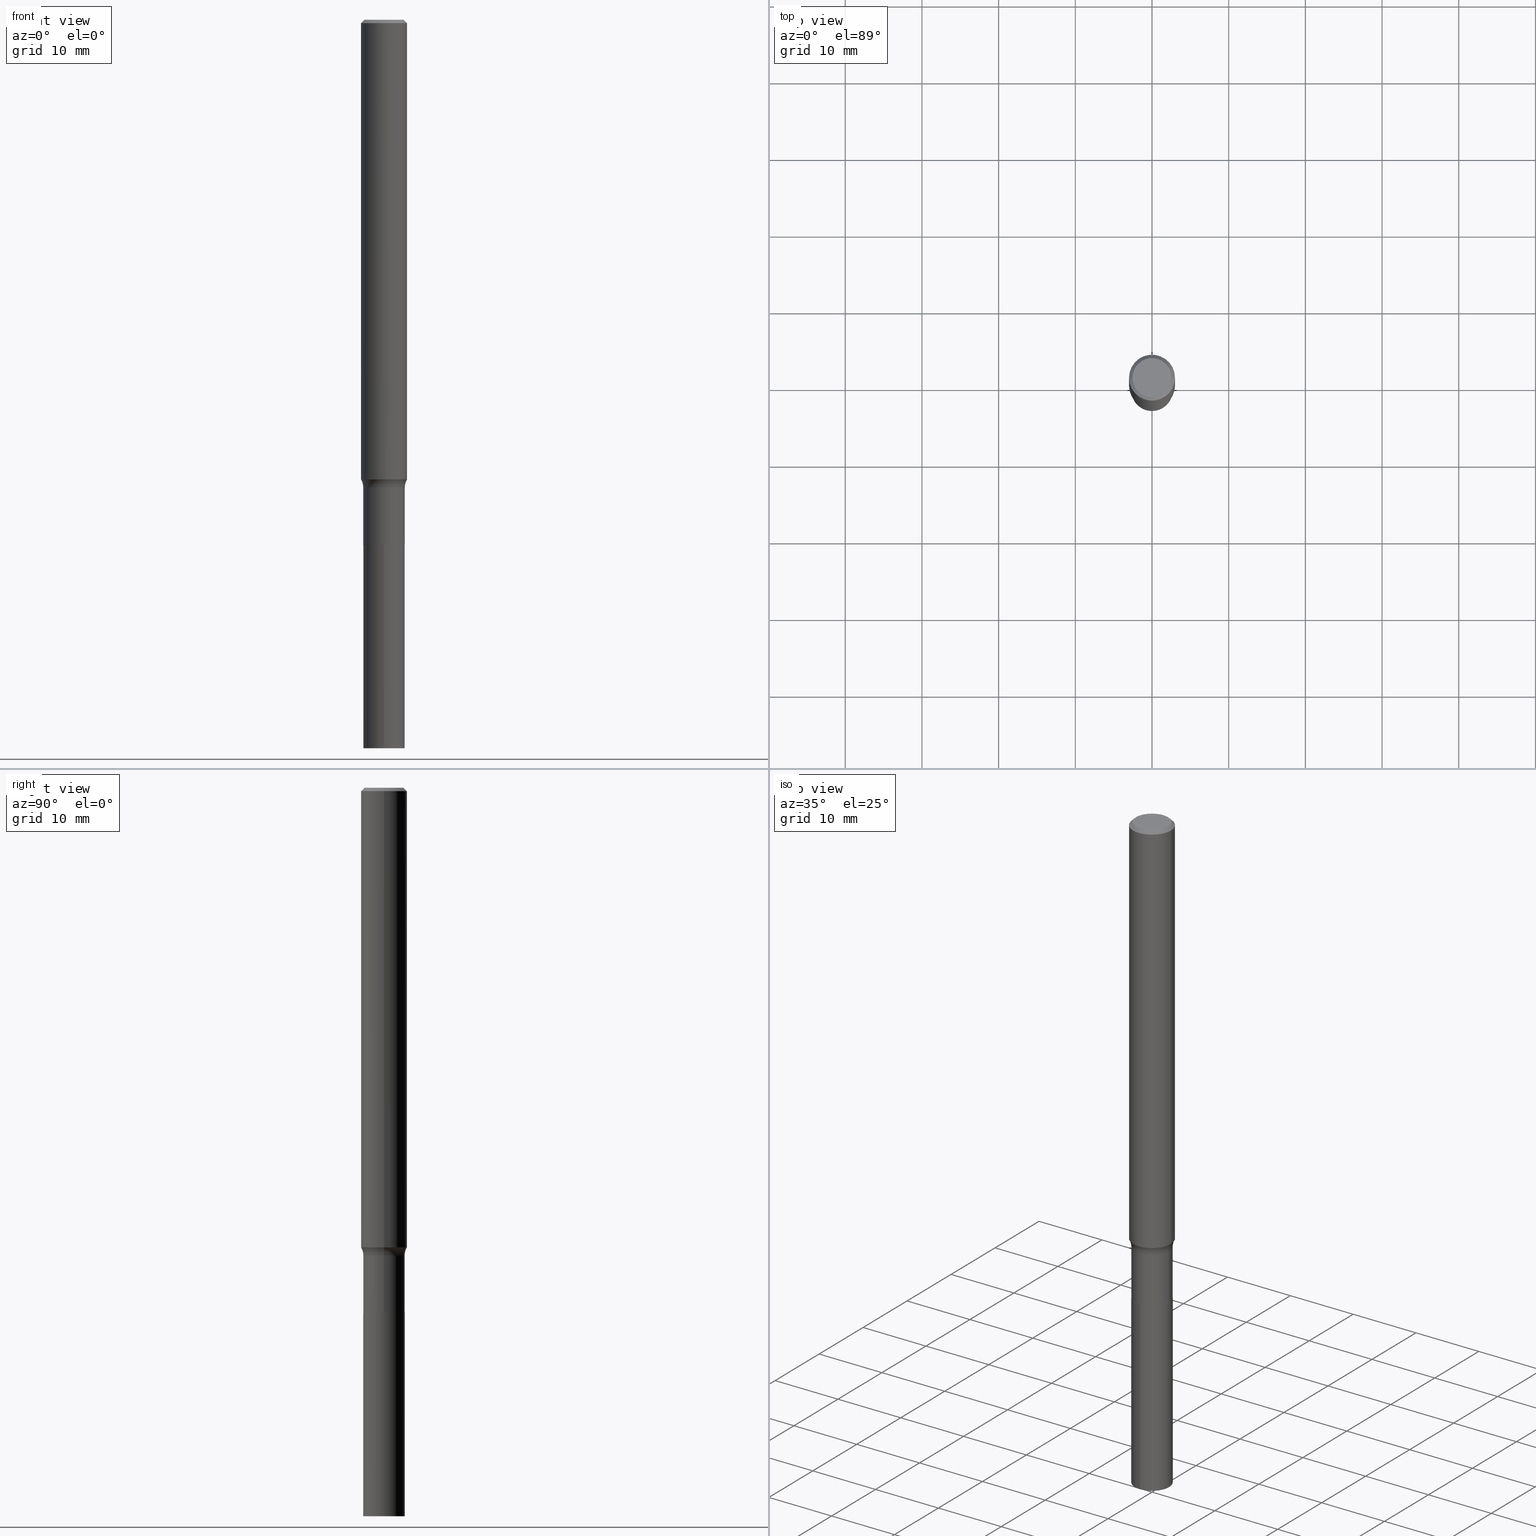
[diagram: canonical four-view strip — front | top / right | iso, engineering-drawing reading convention]
A machine part, canonical four-view strip (front | top / right | iso — engineering-drawing reading convention). The complete STEP part file that produces these views, byte-faithful:
ISO-10303-21;
HEADER;
FILE_DESCRIPTION (( 'STEP AP203' ),
    '1' );
FILE_NAME ('58886.STEP',
    '2024-04-19T14:47:41',
    ( '' ),
    ( '' ),
    'SwSTEP 2.0',
    'SolidWorks 2023',
    '' );
FILE_SCHEMA (( 'CONFIG_CONTROL_DESIGN' ));
ENDSEC;

DATA;
#1 = VERTEX_POINT ( 'NONE', #330 ) ;
#2 = DIRECTION ( 'NONE',  ( 0.000000000000000000, 0.000000000000000000, 1.000000000000000000 ) ) ;
#3 = CYLINDRICAL_SURFACE ( 'NONE', #324, 0.1064999999999999974 ) ;
#4 = DIRECTION ( 'NONE',  ( -6.982962677686265922E-15, -1.000000000000000000, 3.491302639307845228E-15 ) ) ;
#5 = DIRECTION ( 'NONE',  ( -2.445468806185136877E-29, 3.491481338843145188E-15, 1.000000000000000000 ) ) ;
#6 = APPROVAL_DATE_TIME ( #294, #231 ) ;
#7 = LINE ( 'NONE', #116, #311 ) ;
#8 = CARTESIAN_POINT ( 'NONE',  ( -0.1059999999999999970, -8.657907458709072486E-15, -2.696200000000000152 ) ) ;
#9 = VERTEX_POINT ( 'NONE', #368 ) ;
#10 = FACE_OUTER_BOUND ( 'NONE', #288, .T. ) ;
#11 = CONICAL_SURFACE ( 'NONE', #380, 0.1059999999999999970, 0.7853981633972775267 ) ;
#12 = DIRECTION ( 'NONE',  ( 1.000000000000000000, -6.982962677686266711E-15, 0.000000000000000000 ) ) ;
#13 = FACE_OUTER_BOUND ( 'NONE', #25, .T. ) ;
#14 = ORIENTED_EDGE ( 'NONE', *, *, #277, .F. ) ;
#15 = FACE_OUTER_BOUND ( 'NONE', #320, .T. ) ;
#16 = AXIS2_PLACEMENT_3D ( 'NONE', #109, #253, #392 ) ;
#17 = MANIFOLD_SOLID_BREP ( 'Body-Move/Copy2[2]', #444 ) ;
#18 = CARTESIAN_POINT ( 'NONE',  ( 6.592250260833271391E-29, -9.411986245119467472E-15, -2.695699999999999985 ) ) ;
#19 = CIRCLE ( 'NONE', #409, 0.1064999999999999558 ) ;
#20 = CARTESIAN_POINT ( 'NONE',  ( 7.567280135845724511E-16, 0.1064999999999905883, -2.696200000000000596 ) ) ;
#21 = EDGE_CURVE ( 'NONE', #452, #246, #451, .T. ) ;
#22 = DIRECTION ( 'NONE',  ( 1.000000000000000000, -6.982962677686269077E-15, 4.883557194083113462E-29 ) ) ;
#23 = ORIENTED_EDGE ( 'NONE', *, *, #242, .T. ) ;
#24 = CC_DESIGN_DATE_AND_TIME_ASSIGNMENT ( #70, #223, ( #220 ) ) ;
#25 = EDGE_LOOP ( 'NONE', ( #428, #458 ) ) ;
#26 = AXIS2_PLACEMENT_3D ( 'NONE', #191, #120, #329 ) ;
#27 = ORIENTED_EDGE ( 'NONE', *, *, #21, .F. ) ;
#28 = CALENDAR_DATE ( 2024, 19, 4 ) ;
#29 = DIRECTION ( 'NONE',  ( -2.445468806185136597E-29, 3.491481338843145583E-15, 1.000000000000000000 ) ) ;
#30 = ORIENTED_EDGE ( 'NONE', *, *, #398, .F. ) ;
#31 = DATE_AND_TIME ( #218, #213 ) ;
#32 = CARTESIAN_POINT ( 'NONE',  ( 0.000000000000000000, 0.000000000000000000, 0.000000000000000000 ) ) ;
#33 = CIRCLE ( 'NONE', #379, 0.1003850000000000159 ) ;
#34 = CARTESIAN_POINT ( 'NONE',  ( 5.770596610180262322E-29, -8.238882592768014117E-15, -2.359709760183869687 ) ) ;
#35 = EDGE_CURVE ( 'NONE', #163, #325, #66, .T. ) ;
#36 = ORIENTED_EDGE ( 'NONE', *, *, #52, .T. ) ;
#37 = MECHANICAL_CONTEXT ( 'NONE', #252, 'mechanical' ) ;
#38 = FACE_OUTER_BOUND ( 'NONE', #73, .T. ) ;
#39 = DIRECTION ( 'NONE',  ( -2.445593591403688491E-29, 3.491302639307845228E-15, 1.000000000000000000 ) ) ;
#40 = DIRECTION ( 'NONE',  ( -2.445468806185136597E-29, 3.491481338843145583E-15, 1.000000000000000000 ) ) ;
#41 = DIRECTION ( 'NONE',  ( -2.445468806185136597E-29, 3.491481338843145583E-15, 1.000000000000000000 ) ) ;
#42 = AXIS2_PLACEMENT_3D ( 'NONE', #90, #300, #446 ) ;
#43 = DIRECTION ( 'NONE',  ( -2.445468806185136597E-29, 3.491481338843145583E-15, 1.000000000000000000 ) ) ;
#44 = AXIS2_PLACEMENT_3D ( 'NONE', #225, #466, #57 ) ;
#45 = PLANE ( 'NONE',  #434 ) ;
#46 = DIRECTION ( 'NONE',  ( 1.000000000000000000, -6.982962677686260400E-15, 0.000000000000000000 ) ) ;
#47 = EDGE_LOOP ( 'NONE', ( #186, #36, #177, #400 ) ) ;
#48 = EDGE_CURVE ( 'NONE', #58, #1, #336, .T. ) ;
#49 = CARTESIAN_POINT ( 'NONE',  ( 0.1864999999999999714, -9.686067530218649054E-15, -2.401200000000000223 ) ) ;
#50 = CONICAL_SURFACE ( 'NONE', #87, 0.1180999999999999966, 0.7853981633974453924 ) ;
#51 = DIRECTION ( 'NONE',  ( -6.982962677686266711E-15, -1.000000000000000000, 3.491481338843145583E-15 ) ) ;
#52 = EDGE_CURVE ( 'NONE', #283, #58, #192, .T. ) ;
#53 = DIRECTION ( 'NONE',  ( 1.000000000000000000, -6.982962677686266711E-15, 4.875668750515085695E-29 ) ) ;
#54 = CLOSED_SHELL ( 'NONE', ( #363, #323, #439, #144 ) ) ;
#55 = EDGE_CURVE ( 'NONE', #234, #452, #123, .T. ) ;
#56 = AXIS2_PLACEMENT_3D ( 'NONE', #273, #424, #134 ) ;
#57 = DIRECTION ( 'NONE',  ( -6.982962677686265133E-15, -1.000000000000000000, 5.130230974017396004E-15 ) ) ;
#58 = VERTEX_POINT ( 'NONE', #374 ) ;
#59 = EDGE_CURVE ( 'NONE', #1, #58, #118, .T. ) ;
#60 =( NAMED_UNIT ( * ) SI_UNIT ( $, .STERADIAN. ) SOLID_ANGLE_UNIT ( ) );
#61 = ADVANCED_FACE ( 'NONE', ( #15 ), #45, .F. ) ;
#62 = CARTESIAN_POINT ( 'NONE',  ( 4.332147990156998495E-31, -6.185159191760672860E-17, -0.01771500000000011607 ) ) ;
#63 = ORIENTED_EDGE ( 'NONE', *, *, #453, .T. ) ;
#64 = APPROVAL_ROLE ( '' ) ;
#65 = ORIENTED_EDGE ( 'NONE', *, *, #128, .T. ) ;
#66 = CIRCLE ( 'NONE', #301, 0.1064999999999999974 ) ;
#67 = ORGANIZATION ( 'UNSPECIFIED', 'UNSPECIFIED', '' ) ;
#68 = ADVANCED_FACE ( 'NONE', ( #267 ), #316, .F. ) ;
#69 = ORIENTED_EDGE ( 'NONE', *, *, #59, .T. ) ;
#70 = DATE_AND_TIME ( #463, #326 ) ;
#71 = LINE ( 'NONE', #135, #389 ) ;
#72 = FACE_OUTER_BOUND ( 'NONE', #403, .T. ) ;
#73 = EDGE_LOOP ( 'NONE', ( #209, #103, #391, #440 ) ) ;
#74 = PERSON_AND_ORGANIZATION ( #319, #67 ) ;
#75 = DIRECTION ( 'NONE',  ( -2.445468806185136597E-29, 3.491481338843145583E-15, 1.000000000000000000 ) ) ;
#76 = ORIENTED_EDGE ( 'NONE', *, *, #387, .T. ) ;
#77 = PERSON_AND_ORGANIZATION ( #319, #67 ) ;
#78 = ADVANCED_FACE ( 'NONE', ( #263 ), #160, .T. ) ;
#79 = AXIS2_PLACEMENT_3D ( 'NONE', #377, #43, #338 ) ;
#80 = APPROVAL_PERSON_ORGANIZATION ( #215, #231, #64 ) ;
#81 = DIRECTION ( 'NONE',  ( 2.445468806185136597E-29, -3.491481338843145583E-15, -1.000000000000000000 ) ) ;
#82 = DIRECTION ( 'NONE',  ( -6.982962677686265133E-15, -1.000000000000000000, 5.130230974017396004E-15 ) ) ;
#83 = PLANE ( 'NONE',  #435 ) ;
#84 = EDGE_LOOP ( 'NONE', ( #76, #23 ) ) ;
#85 = DIRECTION ( 'NONE',  ( 1.000000000000000000, -6.982962677686264344E-15, 0.000000000000000000 ) ) ;
#86 = EDGE_LOOP ( 'NONE', ( #111, #462, #280, #321 ) ) ;
#87 = AXIS2_PLACEMENT_3D ( 'NONE', #193, #81, #233 ) ;
#88 = EDGE_CURVE ( 'NONE', #260, #293, #121, .T. ) ;
#89 = DIRECTION ( 'NONE',  ( -2.445468806185136597E-29, 3.491481338843145583E-15, 1.000000000000000000 ) ) ;
#90 = CARTESIAN_POINT ( 'NONE',  ( 0.000000000000000000, 0.000000000000000000, 0.000000000000000000 ) ) ;
#91 = CARTESIAN_POINT ( 'NONE',  ( 0.1003850000000000159, -7.803837484803599345E-16, -2.868857591682071522E-17 ) ) ;
#92 = DIRECTION ( 'NONE',  ( -2.445468806185136597E-29, 3.491481338843145583E-15, 1.000000000000000000 ) ) ;
#93 = EDGE_CURVE ( 'NONE', #353, #153, #33, .T. ) ;
#94 = VECTOR ( 'NONE', #197, 39.37007874015748143 ) ;
#95 = AXIS2_PLACEMENT_3D ( 'NONE', #156, #124, #445 ) ;
#96 = CARTESIAN_POINT ( 'NONE',  ( 7.567280135845980891E-16, 0.1064999999999905883, -2.696200000000000596 ) ) ;
#97 = DIRECTION ( 'NONE',  ( -2.445593591403688771E-29, 3.491302639307845228E-15, 1.000000000000000000 ) ) ;
#98 = EDGE_CURVE ( 'NONE', #153, #353, #138, .T. ) ;
#99 =( GEOMETRIC_REPRESENTATION_CONTEXT ( 3 ) GLOBAL_UNCERTAINTY_ASSIGNED_CONTEXT ( ( #342 ) ) GLOBAL_UNIT_ASSIGNED_CONTEXT ( ( #136, #278, #60 ) ) REPRESENTATION_CONTEXT ( 'NONE', 'WORKASPACE' ) );
#100 = ORIENTED_EDGE ( 'NONE', *, *, #414, .T. ) ;
#101 = DATE_AND_TIME ( #322, #262 ) ;
#102 = ORIENTED_EDGE ( 'NONE', *, *, #352, .F. ) ;
#103 = ORIENTED_EDGE ( 'NONE', *, *, #261, .F. ) ;
#104 = CALENDAR_DATE ( 2024, 19, 4 ) ;
#105 = VECTOR ( 'NONE', #168, 39.37007874015748143 ) ;
#106 = FACE_OUTER_BOUND ( 'NONE', #230, .T. ) ;
#107 = VECTOR ( 'NONE', #298, 39.37007874015748143 ) ;
#108 = SECURITY_CLASSIFICATION ( '', '', #257 ) ;
#109 = CARTESIAN_POINT ( 'NONE',  ( 0.000000000000000000, 0.000000000000000000, 0.000000000000000000 ) ) ;
#110 = CC_DESIGN_PERSON_AND_ORGANIZATION_ASSIGNMENT ( #77, #210, ( #108 ) ) ;
#111 = ORIENTED_EDGE ( 'NONE', *, *, #52, .F. ) ;
#112 = DIRECTION ( 'NONE',  ( 1.000000000000000000, 0.000000000000000000, 0.000000000000000000 ) ) ;
#113 = EDGE_CURVE ( 'NONE', #157, #452, #408, .T. ) ;
#114 = EDGE_LOOP ( 'NONE', ( #244, #214, #27, #393 ) ) ;
#115 = PERSON_AND_ORGANIZATION_ROLE ( 'design_supplier' ) ;
#116 = CARTESIAN_POINT ( 'NONE',  ( -0.1180999999999999966, 7.628363003171412752E-16, -0.01771500000000011607 ) ) ;
#117 = CARTESIAN_POINT ( 'NONE',  ( 9.146672704661818171E-29, -1.305865194122628245E-14, -3.740200000000000635 ) ) ;
#118 = CIRCLE ( 'NONE', #130, 0.1180999999999999966 ) ;
#119 = AXIS2_PLACEMENT_3D ( 'NONE', #188, #29, #22 ) ;
#120 = DIRECTION ( 'NONE',  ( 7.105427357601001859E-15, 1.000000000000000000, -3.491481338843145583E-15 ) ) ;
#121 = LINE ( 'NONE', #171, #105 ) ;
#122 = CARTESIAN_POINT ( 'NONE',  ( -0.1181000000000002742, -7.399731621835335132E-15, -2.359709760183869687 ) ) ;
#123 = LINE ( 'NONE', #378, #94 ) ;
#124 = DIRECTION ( 'NONE',  ( -2.445593591403688771E-29, 3.491302639307845228E-15, 1.000000000000000000 ) ) ;
#125 = ORIENTED_EDGE ( 'NONE', *, *, #387, .F. ) ;
#126 = AXIS2_PLACEMENT_3D ( 'NONE', #62, #411, #447 ) ;
#127 = PLANE ( 'NONE',  #202 ) ;
#128 = EDGE_CURVE ( 'NONE', #293, #234, #199, .T. ) ;
#129 = DIRECTION ( 'NONE',  ( -2.445468806185136597E-29, 3.491481338843145583E-15, 1.000000000000000000 ) ) ;
#130 = AXIS2_PLACEMENT_3D ( 'NONE', #341, #40, #406 ) ;
#131 = AXIS2_PLACEMENT_3D ( 'NONE', #381, #89, #366 ) ;
#132 = EDGE_CURVE ( 'NONE', #293, #246, #456, .T. ) ;
#133 = CARTESIAN_POINT ( 'NONE',  ( -0.1064999999999999836, 7.567280135845065812E-16, -5.238665871121473893E-30 ) ) ;
#134 = DIRECTION ( 'NONE',  ( -6.982962677686265133E-15, -1.000000000000000000, 5.130230974017396004E-15 ) ) ;
#135 = CARTESIAN_POINT ( 'NONE',  ( 0.1180999999999999966, -8.720764054544246253E-16, -0.01771500000000011607 ) ) ;
#136 =( CONVERSION_BASED_UNIT ( 'INCH', #239 ) LENGTH_UNIT ( ) NAMED_UNIT ( #155 ) );
#137 = EDGE_CURVE ( 'NONE', #157, #1, #425, .T. ) ;
#138 = CIRCLE ( 'NONE', #365, 0.1003850000000000159 ) ;
#139 = EDGE_LOOP ( 'NONE', ( #265, #256, #176, #148 ) ) ;
#140 = AXIS2_PLACEMENT_3D ( 'NONE', #146, #97, #251 ) ;
#141 = ORIENTED_EDGE ( 'NONE', *, *, #395, .T. ) ;
#142 = COORDINATED_UNIVERSAL_TIME_OFFSET ( 5, 0, .BEHIND. ) ;
#143 = EDGE_LOOP ( 'NONE', ( #179, #63, #100, #351 ) ) ;
#144 = ADVANCED_FACE ( 'NONE', ( #172 ), #127, .F. ) ;
#145 = DATE_TIME_ROLE ( 'classification_date' ) ;
#146 = CARTESIAN_POINT ( 'NONE',  ( 6.593472995236366435E-29, -9.413731985788889764E-15, -2.696200000000000152 ) ) ;
#147 = CC_DESIGN_PERSON_AND_ORGANIZATION_ASSIGNMENT ( #356, #115, ( #369 ) ) ;
#148 = ORIENTED_EDGE ( 'NONE', *, *, #113, .F. ) ;
#149 = APPLICATION_PROTOCOL_DEFINITION ( 'international standard', 'config_control_design', 1994, #240 ) ;
#150 = AXIS2_PLACEMENT_3D ( 'NONE', #32, #183, #432 ) ;
#151 = DESIGN_CONTEXT ( 'detailed design', #240, 'design' ) ;
#152 = DIRECTION ( 'NONE',  ( -2.438088387897960049E-29, 3.491481338843145188E-15, 1.000000000000000000 ) ) ;
#153 = VERTEX_POINT ( 'NONE', #91 ) ;
#154 = CARTESIAN_POINT ( 'NONE',  ( 6.593472995236366435E-29, -9.413731985788889764E-15, -2.696200000000000152 ) ) ;
#155 = DIMENSIONAL_EXPONENTS ( 1.000000000000000000, 0.000000000000000000, 0.000000000000000000, 0.000000000000000000, 0.000000000000000000, 0.000000000000000000, 0.000000000000000000 ) ;
#156 = CARTESIAN_POINT ( 'NONE',  ( 6.593472995236366435E-29, -9.413731985788889764E-15, -2.696200000000000152 ) ) ;
#157 = VERTEX_POINT ( 'NONE', #383 ) ;
#158 = PERSON_AND_ORGANIZATION ( #319, #67 ) ;
#159 = PLANE ( 'NONE',  #399 ) ;
#160 = CYLINDRICAL_SURFACE ( 'NONE', #42, 0.1064999999999999836 ) ;
#161 = CIRCLE ( 'NONE', #26, 0.08000000000000002942 ) ;
#162 = DIRECTION ( 'NONE',  ( -2.445468806185136597E-29, 3.491481338843145583E-15, 1.000000000000000000 ) ) ;
#163 = VERTEX_POINT ( 'NONE', #454 ) ;
#164 = CARTESIAN_POINT ( 'NONE',  ( -4.252429126217843090E-29, -3.224692839256100288E-14, -3.740200000000000635 ) ) ;
#165 = ORIENTED_EDGE ( 'NONE', *, *, #414, .F. ) ;
#166 = DIRECTION ( 'NONE',  ( -2.445468806185136597E-29, 3.491481338843145583E-15, 1.000000000000000000 ) ) ;
#167 = AXIS2_PLACEMENT_3D ( 'NONE', #18, #310, #313 ) ;
#168 = DIRECTION ( 'NONE',  ( -0.7071067811864267805, 7.493145998869918709E-15, 0.7071067811866682540 ) ) ;
#169 = DIRECTION ( 'NONE',  ( 1.000000000000000000, -6.982962677686257244E-15, 0.000000000000000000 ) ) ;
#170 = ADVANCED_FACE ( 'NONE', ( #270 ), #203, .T. ) ;
#171 = CARTESIAN_POINT ( 'NONE',  ( -0.1059999999999999970, -8.660556685883182898E-15, -2.696200000000000152 ) ) ;
#172 = FACE_OUTER_BOUND ( 'NONE', #84, .T. ) ;
#173 = MANIFOLD_SOLID_BREP ( 'Body-Move/Copy2[1]', #54 ) ;
#174 = ORIENTED_EDGE ( 'NONE', *, *, #88, .T. ) ;
#175 = ADVANCED_FACE ( 'NONE', ( #412 ), #388, .T. ) ;
#176 = ORIENTED_EDGE ( 'NONE', *, *, #277, .T. ) ;
#177 = ORIENTED_EDGE ( 'NONE', *, *, #59, .F. ) ;
#178 = PERSON_AND_ORGANIZATION ( #319, #67 ) ;
#179 = ORIENTED_EDGE ( 'NONE', *, *, #442, .F. ) ;
#180 = APPROVAL_STATUS ( 'not_yet_approved' ) ;
#181 = ORIENTED_EDGE ( 'NONE', *, *, #35, .T. ) ;
#182 = APPROVAL_DATE_TIME ( #31, #235 ) ;
#183 = DIRECTION ( 'NONE',  ( -2.445468806185136597E-29, 3.491481338843145583E-15, 1.000000000000000000 ) ) ;
#184 = APPROVAL_PERSON_ORGANIZATION ( #247, #235, #394 ) ;
#185 = CARTESIAN_POINT ( 'NONE',  ( 0.1059999999999999970, -1.015392602962363252E-14, -2.696200000000000152 ) ) ;
#186 = ORIENTED_EDGE ( 'NONE', *, *, #261, .T. ) ;
#187 = DATE_AND_TIME ( #28, #418 ) ;
#188 = CARTESIAN_POINT ( 'NONE',  ( 5.872059697411750332E-29, -8.383744990830161638E-15, -2.401200000000000223 ) ) ;
#189 = CARTESIAN_POINT ( 'NONE',  ( 5.872059697411750332E-29, -8.383744990830161638E-15, -2.401200000000000223 ) ) ;
#190 = ADVANCED_FACE ( 'NONE', ( #286 ), #436, .T. ) ;
#191 = CARTESIAN_POINT ( 'NONE',  ( -0.1864999999999999714, -7.058582788637575586E-15, -2.401200000000000223 ) ) ;
#192 = LINE ( 'NONE', #335, #346 ) ;
#193 = CARTESIAN_POINT ( 'NONE',  ( 4.332147990156998495E-31, -6.185159191760672860E-17, -0.01771500000000011607 ) ) ;
#194 = DIRECTION ( 'NONE',  ( 2.438088387897960049E-29, -3.491481338843145188E-15, -1.000000000000000000 ) ) ;
#195 = CC_DESIGN_PERSON_AND_ORGANIZATION_ASSIGNMENT ( #250, #397, ( #369 ) ) ;
#196 = CARTESIAN_POINT ( 'NONE',  ( 6.593472995236366435E-29, -9.413731985788889764E-15, -2.696200000000000152 ) ) ;
#197 = DIRECTION ( 'NONE',  ( -2.445468806185136877E-29, 3.491481338843145188E-15, 1.000000000000000000 ) ) ;
#198 = ADVANCED_FACE ( 'NONE', ( #72 ), #302, .T. ) ;
#199 = CIRCLE ( 'NONE', #167, 0.1064999999999999974 ) ;
#200 = CIRCLE ( 'NONE', #140, 0.1064999999999999974 ) ;
#201 = CARTESIAN_POINT ( 'NONE',  ( 7.015701749847187307E-46, -1.001656274515824970E-31, -2.868857591682589212E-17 ) ) ;
#202 = AXIS2_PLACEMENT_3D ( 'NONE', #269, #308, #420 ) ;
#203 = CONICAL_SURFACE ( 'NONE', #423, 0.1059999999999999970, 0.7853981633972775267 ) ;
#204 = CARTESIAN_POINT ( 'NONE',  ( 0.1181000000000001354, -8.246878922347490515E-16, 5.758764772215007447E-30 ) ) ;
#205 = CC_DESIGN_SECURITY_CLASSIFICATION ( #108, ( #369 ) ) ;
#206 = CARTESIAN_POINT ( 'NONE',  ( 0.1059999999999999970, -1.015392602962363252E-14, -2.696200000000000152 ) ) ;
#207 = ORIENTED_EDGE ( 'NONE', *, *, #98, .T. ) ;
#208 = EDGE_CURVE ( 'NONE', #283, #246, #161, .T. ) ;
#209 = ORIENTED_EDGE ( 'NONE', *, *, #208, .F. ) ;
#210 = PERSON_AND_ORGANIZATION_ROLE ( 'classification_officer' ) ;
#211 = ORIENTED_EDGE ( 'NONE', *, *, #371, .T. ) ;
#212 = AXIS2_PLACEMENT_3D ( 'NONE', #334, #266, #259 ) ;
#213 = LOCAL_TIME ( 10, 47, 41.00000000000000000, #441 ) ;
#214 = ORIENTED_EDGE ( 'NONE', *, *, #132, .T. ) ;
#215 = PERSON_AND_ORGANIZATION ( #319, #67 ) ;
#216 = DIRECTION ( 'NONE',  ( -0.7071067811865454633, 2.468850131082235367E-15, -0.7071067811865495711 ) ) ;
#217 = ORIENTED_EDGE ( 'NONE', *, *, #442, .T. ) ;
#218 = CALENDAR_DATE ( 2024, 19, 4 ) ;
#219 = LINE ( 'NONE', #255, #107 ) ;
#220 = PRODUCT_DEFINITION ( 'UNKNOWN', '', #369, #151 ) ;
#221 = CARTESIAN_POINT ( 'NONE',  ( 0.1064999999999999974, -1.015567177029305481E-14, -2.695699999999999985 ) ) ;
#222 = CARTESIAN_POINT ( 'NONE',  ( 3.507850874923593654E-46, -5.008281372579124849E-32, -1.434428795841294606E-17 ) ) ;
#223 = DATE_TIME_ROLE ( 'creation_date' ) ;
#224 = VECTOR ( 'NONE', #275, 39.37007874015748143 ) ;
#225 = CARTESIAN_POINT ( 'NONE',  ( 6.593472995236366435E-29, -9.413731985788889764E-15, -2.696200000000000152 ) ) ;
#226 = CARTESIAN_POINT ( 'NONE',  ( 4.332147990156998495E-31, -6.185159191760672860E-17, -0.01771500000000011607 ) ) ;
#227 = DIRECTION ( 'NONE',  ( 1.000000000000000000, -6.982962677686265922E-15, 4.876176775795935793E-29 ) ) ;
#228 = VERTEX_POINT ( 'NONE', #185 ) ;
#229 = FACE_OUTER_BOUND ( 'NONE', #430, .T. ) ;
#230 = EDGE_LOOP ( 'NONE', ( #181, #217, #125, #165 ) ) ;
#231 = APPROVAL ( #180, 'UNSPECIFIED' ) ;
#232 = VECTOR ( 'NONE', #349, 39.37007874015748143 ) ;
#233 = DIRECTION ( 'NONE',  ( -1.000000000000000000, 6.982962677686266711E-15, 0.000000000000000000 ) ) ;
#234 = VERTEX_POINT ( 'NONE', #221 ) ;
#235 = APPROVAL ( #289, 'UNSPECIFIED' ) ;
#236 = AXIS2_PLACEMENT_3D ( 'NONE', #333, #410, #382 ) ;
#237 = ADVANCED_BREP_SHAPE_REPRESENTATION ( '58886', ( #173, #17, #427 ), #99 ) ;
#238 = APPROVAL_PERSON_ORGANIZATION ( #158, #344, #282 ) ;
#239 = LENGTH_MEASURE_WITH_UNIT ( LENGTH_MEASURE( 0.02539999999999999897 ), #422 );
#240 = APPLICATION_CONTEXT ( 'configuration controlled 3d designs of mechanical parts and assemblies' ) ;
#241 = AXIS2_PLACEMENT_3D ( 'NONE', #226, #41, #12 ) ;
#242 = EDGE_CURVE ( 'NONE', #461, #9, #367, .T. ) ;
#243 = CARTESIAN_POINT ( 'NONE',  ( 0.000000000000000000, 0.000000000000000000, 0.000000000000000000 ) ) ;
#244 = ORIENTED_EDGE ( 'NONE', *, *, #299, .T. ) ;
#245 = SHAPE_DEFINITION_REPRESENTATION ( #348, #237 ) ;
#246 = VERTEX_POINT ( 'NONE', #415 ) ;
#247 = PERSON_AND_ORGANIZATION ( #319, #67 ) ;
#248 = ORIENTED_EDGE ( 'NONE', *, *, #299, .F. ) ;
#249 = AXIS2_PLACEMENT_3D ( 'NONE', #285, #360, #438 ) ;
#250 = PERSON_AND_ORGANIZATION ( #319, #67 ) ;
#251 = DIRECTION ( 'NONE',  ( -6.982962677686265133E-15, -1.000000000000000000, 5.130230974017396004E-15 ) ) ;
#252 = APPLICATION_CONTEXT ( 'configuration controlled 3d designs of mechanical parts and assemblies' ) ;
#253 = DIRECTION ( 'NONE',  ( -2.445468806185136597E-29, 3.491481338843145583E-15, 1.000000000000000000 ) ) ;
#254 = ORIENTED_EDGE ( 'NONE', *, *, #352, .T. ) ;
#255 = CARTESIAN_POINT ( 'NONE',  ( -7.436855251735213731E-16, -0.1065000000000094066, -2.696199999999999708 ) ) ;
#256 = ORIENTED_EDGE ( 'NONE', *, *, #208, .T. ) ;
#257 = SECURITY_CLASSIFICATION_LEVEL ( 'unclassified' ) ;
#258 = DIRECTION ( 'NONE',  ( -6.982962677686265133E-15, -1.000000000000000000, 5.130230974017396004E-15 ) ) ;
#259 = DIRECTION ( 'NONE',  ( 1.000000000000000000, -6.982962677686264344E-15, 0.000000000000000000 ) ) ;
#260 = VERTEX_POINT ( 'NONE', #8 ) ;
#261 = EDGE_CURVE ( 'NONE', #157, #283, #355, .T. ) ;
#262 = LOCAL_TIME ( 10, 47, 41.00000000000000000, #284 ) ;
#263 = FACE_OUTER_BOUND ( 'NONE', #114, .T. ) ;
#264 = CARTESIAN_POINT ( 'NONE',  ( 6.593472995236366435E-29, -9.413731985788889764E-15, -2.696200000000000152 ) ) ;
#265 = ORIENTED_EDGE ( 'NONE', *, *, #276, .F. ) ;
#266 = DIRECTION ( 'NONE',  ( -2.445468806185136597E-29, 3.491481338843145583E-15, 1.000000000000000000 ) ) ;
#267 = FACE_OUTER_BOUND ( 'NONE', #139, .T. ) ;
#268 = CIRCLE ( 'NONE', #56, 0.1064999999999999974 ) ;
#269 = CARTESIAN_POINT ( 'NONE',  ( 6.593472995236366435E-29, -9.413731985788889764E-15, -2.696200000000000152 ) ) ;
#270 = FACE_OUTER_BOUND ( 'NONE', #318, .T. ) ;
#271 = DIRECTION ( 'NONE',  ( -2.445468806185136597E-29, 3.491481338843145583E-15, 1.000000000000000000 ) ) ;
#272 = ADVANCED_FACE ( 'NONE', ( #10 ), #11, .T. ) ;
#273 = CARTESIAN_POINT ( 'NONE',  ( 9.146672704661818171E-29, -1.305865194122628245E-14, -3.740200000000000635 ) ) ;
#274 = AXIS2_PLACEMENT_3D ( 'NONE', #34, #292, #85 ) ;
#275 = DIRECTION ( 'NONE',  ( -2.445468806185136877E-29, 3.491481338843145188E-15, 1.000000000000000000 ) ) ;
#276 = EDGE_CURVE ( 'NONE', #283, #157, #279, .T. ) ;
#277 = EDGE_CURVE ( 'NONE', #246, #452, #19, .T. ) ;
#278 =( NAMED_UNIT ( * ) PLANE_ANGLE_UNIT ( ) SI_UNIT ( $, .RADIAN. ) );
#279 = CIRCLE ( 'NONE', #274, 0.1181000000000002742 ) ;
#280 = ORIENTED_EDGE ( 'NONE', *, *, #137, .T. ) ;
#281 = ORIENTED_EDGE ( 'NONE', *, *, #402, .T. ) ;
#282 = APPROVAL_ROLE ( '' ) ;
#283 = VERTEX_POINT ( 'NONE', #122 ) ;
#284 = COORDINATED_UNIVERSAL_TIME_OFFSET ( 5, 0, .BEHIND. ) ;
#285 = CARTESIAN_POINT ( 'NONE',  ( 6.593472995236366435E-29, -9.413731985788889764E-15, -2.696200000000000152 ) ) ;
#286 = FACE_OUTER_BOUND ( 'NONE', #376, .T. ) ;
#287 = AXIS2_PLACEMENT_3D ( 'NONE', #243, #357, #464 ) ;
#288 = EDGE_LOOP ( 'NONE', ( #141, #174, #248, #396 ) ) ;
#289 = APPROVAL_STATUS ( 'not_yet_approved' ) ;
#290 = CC_DESIGN_APPROVAL ( #344, ( #108 ) ) ;
#291 = ADVANCED_FACE ( 'NONE', ( #229 ), #50, .T. ) ;
#292 = DIRECTION ( 'NONE',  ( -2.445468806185136597E-29, 3.491481338843145583E-15, 1.000000000000000000 ) ) ;
#293 = VERTEX_POINT ( 'NONE', #373 ) ;
#294 = DATE_AND_TIME ( #104, #390 ) ;
#295 = DIRECTION ( 'NONE',  ( -2.445593591403688771E-29, 3.491302639307845228E-15, 1.000000000000000000 ) ) ;
#296 = FACE_OUTER_BOUND ( 'NONE', #358, .T. ) ;
#297 = ORIENTED_EDGE ( 'NONE', *, *, #88, .F. ) ;
#298 = DIRECTION ( 'NONE',  ( -2.445593591403689052E-29, 3.491302639307845228E-15, 1.000000000000000000 ) ) ;
#299 = EDGE_CURVE ( 'NONE', #234, #293, #337, .T. ) ;
#300 = DIRECTION ( 'NONE',  ( -2.445468806185136597E-29, 3.491481338843145583E-15, 1.000000000000000000 ) ) ;
#301 = AXIS2_PLACEMENT_3D ( 'NONE', #117, #448, #82 ) ;
#302 = CONICAL_SURFACE ( 'NONE', #126, 0.1180999999999999966, 0.7853981633974453924 ) ;
#303 = CC_DESIGN_PERSON_AND_ORGANIZATION_ASSIGNMENT ( #178, #401, ( #361 ) ) ;
#304 = DIRECTION ( 'NONE',  ( 1.000000000000000000, -6.982962677686267499E-15, 0.000000000000000000 ) ) ;
#305 = ORIENTED_EDGE ( 'NONE', *, *, #132, .F. ) ;
#306 = ORIENTED_EDGE ( 'NONE', *, *, #395, .F. ) ;
#307 = DIRECTION ( 'NONE',  ( 1.000000000000000000, -6.982962677686269077E-15, 4.883557194083113462E-29 ) ) ;
#308 = DIRECTION ( 'NONE',  ( 2.445593591403688491E-29, -3.491302639307845228E-15, -1.000000000000000000 ) ) ;
#309 = DIRECTION ( 'NONE',  ( -2.445593591403689052E-29, 3.491302639307845228E-15, 1.000000000000000000 ) ) ;
#310 = DIRECTION ( 'NONE',  ( -2.445468806185136597E-29, 3.491481338843145583E-15, 1.000000000000000000 ) ) ;
#311 = VECTOR ( 'NONE', #216, 39.37007874015748143 ) ;
#312 = CC_DESIGN_APPROVAL ( #231, ( #220 ) ) ;
#313 = DIRECTION ( 'NONE',  ( 1.000000000000000000, -6.982962677686273810E-15, 0.000000000000000000 ) ) ;
#314 = CYLINDRICAL_SURFACE ( 'NONE', #150, 0.1181000000000001354 ) ;
#315 = ORIENTED_EDGE ( 'NONE', *, *, #98, .F. ) ;
#316 = TOROIDAL_SURFACE ( 'NONE', #455, 0.1864999999999999714, 0.08000000000000002942 ) ;
#317 = TOROIDAL_SURFACE ( 'NONE', #119, 0.1864999999999999714, 0.08000000000000002942 ) ;
#318 = EDGE_LOOP ( 'NONE', ( #297, #254, #281, #443 ) ) ;
#319 = PERSON ( 'UNSPECIFIED', 'UNSPECIFIED', 'UNSPECIFIED', ('UNSPECIFIED'), ('UNSPECIFIED'), ('UNSPECIFIED') ) ;
#320 = EDGE_LOOP ( 'NONE', ( #465, #207 ) ) ;
#321 = ORIENTED_EDGE ( 'NONE', *, *, #48, .F. ) ;
#322 = CALENDAR_DATE ( 2024, 19, 4 ) ;
#323 = ADVANCED_FACE ( 'NONE', ( #13 ), #83, .F. ) ;
#324 = AXIS2_PLACEMENT_3D ( 'NONE', #154, #295, #258 ) ;
#325 = VERTEX_POINT ( 'NONE', #417 ) ;
#326 = LOCAL_TIME ( 10, 47, 41.00000000000000000, #142 ) ;
#327 = COORDINATED_UNIVERSAL_TIME_OFFSET ( 5, 0, .BEHIND. ) ;
#328 = FACE_OUTER_BOUND ( 'NONE', #143, .T. ) ;
#329 = DIRECTION ( 'NONE',  ( -1.000000000000000000, 7.105427357600995548E-15, 0.000000000000000000 ) ) ;
#330 = CARTESIAN_POINT ( 'NONE',  ( 0.1180999999999999966, -8.865394841523548556E-16, -0.01771500000000011607 ) ) ;
#331 = CARTESIAN_POINT ( 'NONE',  ( 0.000000000000000000, 0.000000000000000000, 0.000000000000000000 ) ) ;
#332 = CARTESIAN_POINT ( 'NONE',  ( -0.1003850000000000159, 7.319105043583384717E-16, -2.868857591683090262E-17 ) ) ;
#333 = CARTESIAN_POINT ( 'NONE',  ( 5.872059697411750332E-29, -8.383744990830161638E-15, -2.401200000000000223 ) ) ;
#334 = CARTESIAN_POINT ( 'NONE',  ( 5.770596610180262322E-29, -8.238882592768014117E-15, -2.359709760183869687 ) ) ;
#335 = CARTESIAN_POINT ( 'NONE',  ( -0.1181000000000001354, 8.391509709326792818E-16, -5.809262341591050090E-30 ) ) ;
#336 = CIRCLE ( 'NONE', #241, 0.1180999999999999966 ) ;
#337 = CIRCLE ( 'NONE', #79, 0.1064999999999999974 ) ;
#338 = DIRECTION ( 'NONE',  ( 1.000000000000000000, -6.982962677686273810E-15, 0.000000000000000000 ) ) ;
#339 = ORIENTED_EDGE ( 'NONE', *, *, #371, .F. ) ;
#340 = CARTESIAN_POINT ( 'NONE',  ( 5.872059697411750332E-29, -8.383744990830161638E-15, -2.401200000000000223 ) ) ;
#341 = CARTESIAN_POINT ( 'NONE',  ( 4.332147990156998495E-31, -6.185159191760672860E-17, -0.01771500000000011607 ) ) ;
#342 = UNCERTAINTY_MEASURE_WITH_UNIT (LENGTH_MEASURE( 1.000000000000000082E-05 ), #136, 'distance_accuracy_value', 'NONE');
#343 = LINE ( 'NONE', #20, #467 ) ;
#344 = APPROVAL ( #429, 'UNSPECIFIED' ) ;
#345 = CARTESIAN_POINT ( 'NONE',  ( 7.015701749847187307E-46, -1.001656274515824970E-31, -2.868857591682589212E-17 ) ) ;
#346 = VECTOR ( 'NONE', #5, 39.37007874015748143 ) ;
#347 = VECTOR ( 'NONE', #350, 39.37007874015748143 ) ;
#348 = PRODUCT_DEFINITION_SHAPE ( 'NONE', 'NONE',  #220 ) ;
#349 = DIRECTION ( 'NONE',  ( -2.445468806185136877E-29, 3.491481338843145188E-15, 1.000000000000000000 ) ) ;
#350 = DIRECTION ( 'NONE',  ( 0.7071067811864267805, -2.468850131080992517E-15, 0.7071067811866682540 ) ) ;
#351 = ORIENTED_EDGE ( 'NONE', *, *, #242, .F. ) ;
#352 = EDGE_CURVE ( 'NONE', #260, #228, #384, .T. ) ;
#353 = VERTEX_POINT ( 'NONE', #332 ) ;
#354 = ADVANCED_FACE ( 'NONE', ( #296 ), #159, .F. ) ;
#355 = CIRCLE ( 'NONE', #212, 0.1181000000000002742 ) ;
#356 = PERSON_AND_ORGANIZATION ( #319, #67 ) ;
#357 = DIRECTION ( 'NONE',  ( -2.445468806185136597E-29, 3.491481338843145583E-15, 1.000000000000000000 ) ) ;
#358 = EDGE_LOOP ( 'NONE', ( #306, #102 ) ) ;
#359 = APPROVAL_DATE_TIME ( #101, #344 ) ;
#360 = DIRECTION ( 'NONE',  ( -2.445468806185136597E-29, 3.491481338843145583E-15, 1.000000000000000000 ) ) ;
#361 = PRODUCT ( '58886', '58886', '', ( #37 ) ) ;
#362 = ORIENTED_EDGE ( 'NONE', *, *, #93, .F. ) ;
#363 = ADVANCED_FACE ( 'NONE', ( #106 ), #407, .T. ) ;
#364 = FACE_OUTER_BOUND ( 'NONE', #47, .T. ) ;
#365 = AXIS2_PLACEMENT_3D ( 'NONE', #345, #271, #385 ) ;
#366 = DIRECTION ( 'NONE',  ( 1.000000000000000000, -6.982962677686260400E-15, 0.000000000000000000 ) ) ;
#367 = CIRCLE ( 'NONE', #95, 0.1064999999999999974 ) ;
#368 = CARTESIAN_POINT ( 'NONE',  ( -7.436855251735213731E-16, -0.1065000000000094066, -2.696199999999999708 ) ) ;
#369 = PRODUCT_DEFINITION_FORMATION_WITH_SPECIFIED_SOURCE ( 'ANY', '', #361, .NOT_KNOWN. ) ;
#370 = COORDINATED_UNIVERSAL_TIME_OFFSET ( 5, 0, .BEHIND. ) ;
#371 = EDGE_CURVE ( 'NONE', #153, #1, #71, .T. ) ;
#372 = LINE ( 'NONE', #206, #347 ) ;
#373 = CARTESIAN_POINT ( 'NONE',  ( -0.1064999999999999974, -8.141137604390308368E-15, -2.695699999999999985 ) ) ;
#374 = CARTESIAN_POINT ( 'NONE',  ( -0.1180999999999999966, -3.311216121410129200E-15, -0.01771500000000011607 ) ) ;
#375 = DIRECTION ( 'NONE',  ( 1.000000000000000000, -6.982962677686260400E-15, 0.000000000000000000 ) ) ;
#376 = EDGE_LOOP ( 'NONE', ( #305, #65, #416, #14 ) ) ;
#377 = CARTESIAN_POINT ( 'NONE',  ( 6.592250260833271391E-29, -9.411986245119467472E-15, -2.695699999999999985 ) ) ;
#378 = CARTESIAN_POINT ( 'NONE',  ( 0.1064999999999999836, -7.436855251735872430E-16, 5.193128266222670330E-30 ) ) ;
#379 = AXIS2_PLACEMENT_3D ( 'NONE', #201, #129, #53 ) ;
#380 = AXIS2_PLACEMENT_3D ( 'NONE', #264, #162, #46 ) ;
#381 = CARTESIAN_POINT ( 'NONE',  ( 6.593472995236366435E-29, -9.413731985788889764E-15, -2.696200000000000152 ) ) ;
#382 = DIRECTION ( 'NONE',  ( 1.000000000000000000, -6.982962677686267499E-15, 0.000000000000000000 ) ) ;
#383 = CARTESIAN_POINT ( 'NONE',  ( 0.1181000000000002742, -9.063570485002762380E-15, -2.359709760183869687 ) ) ;
#384 = CIRCLE ( 'NONE', #131, 0.1059999999999999970 ) ;
#385 = DIRECTION ( 'NONE',  ( 1.000000000000000000, -6.982962677686266711E-15, 4.875668750515085695E-29 ) ) ;
#386 = PRODUCT_RELATED_PRODUCT_CATEGORY ( 'detail', '', ( #361 ) ) ;
#387 = EDGE_CURVE ( 'NONE', #9, #461, #200, .T. ) ;
#388 = CYLINDRICAL_SURFACE ( 'NONE', #287, 0.1181000000000001354 ) ;
#389 = VECTOR ( 'NONE', #426, 39.37007874015748143 ) ;
#390 = LOCAL_TIME ( 10, 47, 41.00000000000000000, #327 ) ;
#391 = ORIENTED_EDGE ( 'NONE', *, *, #113, .T. ) ;
#392 = DIRECTION ( 'NONE',  ( 1.000000000000000000, -6.982962677686265922E-15, 4.876176775795935232E-29 ) ) ;
#393 = ORIENTED_EDGE ( 'NONE', *, *, #55, .F. ) ;
#394 = APPROVAL_ROLE ( '' ) ;
#395 = EDGE_CURVE ( 'NONE', #228, #260, #459, .T. ) ;
#396 = ORIENTED_EDGE ( 'NONE', *, *, #402, .F. ) ;
#397 = PERSON_AND_ORGANIZATION_ROLE ( 'creator' ) ;
#398 = EDGE_CURVE ( 'NONE', #353, #58, #7, .T. ) ;
#399 = AXIS2_PLACEMENT_3D ( 'NONE', #196, #152, #227 ) ;
#400 = ORIENTED_EDGE ( 'NONE', *, *, #137, .F. ) ;
#401 = PERSON_AND_ORGANIZATION_ROLE ( 'design_owner' ) ;
#402 = EDGE_CURVE ( 'NONE', #228, #234, #372, .T. ) ;
#403 = EDGE_LOOP ( 'NONE', ( #339, #362, #413, #437 ) ) ;
#404 = APPLICATION_PROTOCOL_DEFINITION ( 'international standard', 'config_control_design', 1994, #252 ) ;
#405 = ADVANCED_FACE ( 'NONE', ( #38 ), #317, .F. ) ;
#406 = DIRECTION ( 'NONE',  ( 1.000000000000000000, -6.982962677686266711E-15, 0.000000000000000000 ) ) ;
#407 = CYLINDRICAL_SURFACE ( 'NONE', #44, 0.1064999999999999974 ) ;
#408 = CIRCLE ( 'NONE', #433, 0.08000000000000002942 ) ;
#409 = AXIS2_PLACEMENT_3D ( 'NONE', #340, #75, #304 ) ;
#410 = DIRECTION ( 'NONE',  ( -2.445468806185136597E-29, 3.491481338843145583E-15, 1.000000000000000000 ) ) ;
#411 = DIRECTION ( 'NONE',  ( 2.445468806185136597E-29, -3.491481338843145583E-15, -1.000000000000000000 ) ) ;
#412 = FACE_OUTER_BOUND ( 'NONE', #86, .T. ) ;
#413 = ORIENTED_EDGE ( 'NONE', *, *, #398, .T. ) ;
#414 = EDGE_CURVE ( 'NONE', #163, #9, #219, .T. ) ;
#415 = CARTESIAN_POINT ( 'NONE',  ( -0.1064999999999999558, -8.141137604390308368E-15, -2.401200000000000223 ) ) ;
#416 = ORIENTED_EDGE ( 'NONE', *, *, #55, .T. ) ;
#417 = CARTESIAN_POINT ( 'NONE',  ( 7.567280135845851715E-16, 0.1064999999999869384, -3.740200000000001079 ) ) ;
#418 = LOCAL_TIME ( 10, 47, 41.00000000000000000, #370 ) ;
#419 = ADVANCED_FACE ( 'NONE', ( #364 ), #314, .T. ) ;
#420 = DIRECTION ( 'NONE',  ( 6.982962677686265922E-15, 1.000000000000000000, -3.491302639307845228E-15 ) ) ;
#421 = CARTESIAN_POINT ( 'NONE',  ( 6.593472995236366435E-29, -9.413731985788889764E-15, -2.696200000000000152 ) ) ;
#422 =( LENGTH_UNIT ( ) NAMED_UNIT ( * ) SI_UNIT ( $, .METRE. ) );
#423 = AXIS2_PLACEMENT_3D ( 'NONE', #421, #92, #375 ) ;
#424 = DIRECTION ( 'NONE',  ( -2.445593591403688771E-29, 3.491302639307845228E-15, 1.000000000000000000 ) ) ;
#425 = LINE ( 'NONE', #204, #232 ) ;
#426 = DIRECTION ( 'NONE',  ( 0.7071067811865454633, -7.319954787623248157E-15, -0.7071067811865495711 ) ) ;
#427 = AXIS2_PLACEMENT_3D ( 'NONE', #331, #2, #112 ) ;
#428 = ORIENTED_EDGE ( 'NONE', *, *, #35, .F. ) ;
#429 = APPROVAL_STATUS ( 'not_yet_approved' ) ;
#430 = EDGE_LOOP ( 'NONE', ( #315, #211, #69, #30 ) ) ;
#431 = PERSON_AND_ORGANIZATION_ROLE ( 'creator' ) ;
#432 = DIRECTION ( 'NONE',  ( 1.000000000000000000, -6.982962677686266711E-15, 4.876176775795936353E-29 ) ) ;
#433 = AXIS2_PLACEMENT_3D ( 'NONE', #49, #51, #169 ) ;
#434 = AXIS2_PLACEMENT_3D ( 'NONE', #222, #194, #450 ) ;
#435 = AXIS2_PLACEMENT_3D ( 'NONE', #164, #39, #4 ) ;
#436 = CYLINDRICAL_SURFACE ( 'NONE', #16, 0.1064999999999999836 ) ;
#437 = ORIENTED_EDGE ( 'NONE', *, *, #48, .T. ) ;
#438 = DIRECTION ( 'NONE',  ( 1.000000000000000000, -6.982962677686260400E-15, 0.000000000000000000 ) ) ;
#439 = ADVANCED_FACE ( 'NONE', ( #328 ), #3, .T. ) ;
#440 = ORIENTED_EDGE ( 'NONE', *, *, #21, .T. ) ;
#441 = COORDINATED_UNIVERSAL_TIME_OFFSET ( 5, 0, .BEHIND. ) ;
#442 = EDGE_CURVE ( 'NONE', #325, #461, #343, .T. ) ;
#443 = ORIENTED_EDGE ( 'NONE', *, *, #128, .F. ) ;
#444 = CLOSED_SHELL ( 'NONE', ( #272, #291, #419, #68, #78, #190, #405, #175, #198, #61, #354, #170 ) ) ;
#445 = DIRECTION ( 'NONE',  ( -6.982962677686265133E-15, -1.000000000000000000, 5.130230974017396004E-15 ) ) ;
#446 = DIRECTION ( 'NONE',  ( 1.000000000000000000, -6.982962677686265922E-15, 4.876176775795935232E-29 ) ) ;
#447 = DIRECTION ( 'NONE',  ( -1.000000000000000000, 6.982962677686266711E-15, 0.000000000000000000 ) ) ;
#448 = DIRECTION ( 'NONE',  ( -2.445593591403688771E-29, 3.491302639307845228E-15, 1.000000000000000000 ) ) ;
#449 = CC_DESIGN_PERSON_AND_ORGANIZATION_ASSIGNMENT ( #74, #431, ( #220 ) ) ;
#450 = DIRECTION ( 'NONE',  ( -1.000000000000000000, 6.982962677686265922E-15, -4.876176775795935793E-29 ) ) ;
#451 = CIRCLE ( 'NONE', #236, 0.1064999999999999558 ) ;
#452 = VERTEX_POINT ( 'NONE', #457 ) ;
#453 = EDGE_CURVE ( 'NONE', #325, #163, #268, .T. ) ;
#454 = CARTESIAN_POINT ( 'NONE',  ( -7.436855251734958337E-16, -0.1065000000000130564, -3.740200000000000191 ) ) ;
#455 = AXIS2_PLACEMENT_3D ( 'NONE', #189, #166, #307 ) ;
#456 = LINE ( 'NONE', #133, #224 ) ;
#457 = CARTESIAN_POINT ( 'NONE',  ( 0.1064999999999999558, -9.127430516003748980E-15, -2.401200000000000223 ) ) ;
#458 = ORIENTED_EDGE ( 'NONE', *, *, #453, .F. ) ;
#459 = CIRCLE ( 'NONE', #249, 0.1059999999999999970 ) ;
#460 = CC_DESIGN_APPROVAL ( #235, ( #369 ) ) ;
#461 = VERTEX_POINT ( 'NONE', #96 ) ;
#462 = ORIENTED_EDGE ( 'NONE', *, *, #276, .T. ) ;
#463 = CALENDAR_DATE ( 2024, 19, 4 ) ;
#464 = DIRECTION ( 'NONE',  ( 1.000000000000000000, -6.982962677686266711E-15, 4.876176775795936353E-29 ) ) ;
#465 = ORIENTED_EDGE ( 'NONE', *, *, #93, .T. ) ;
#466 = DIRECTION ( 'NONE',  ( -2.445593591403688771E-29, 3.491302639307845228E-15, 1.000000000000000000 ) ) ;
#467 = VECTOR ( 'NONE', #309, 39.37007874015748143 ) ;
#468 = CC_DESIGN_DATE_AND_TIME_ASSIGNMENT ( #187, #145, ( #108 ) ) ;
ENDSEC;
END-ISO-10303-21;
